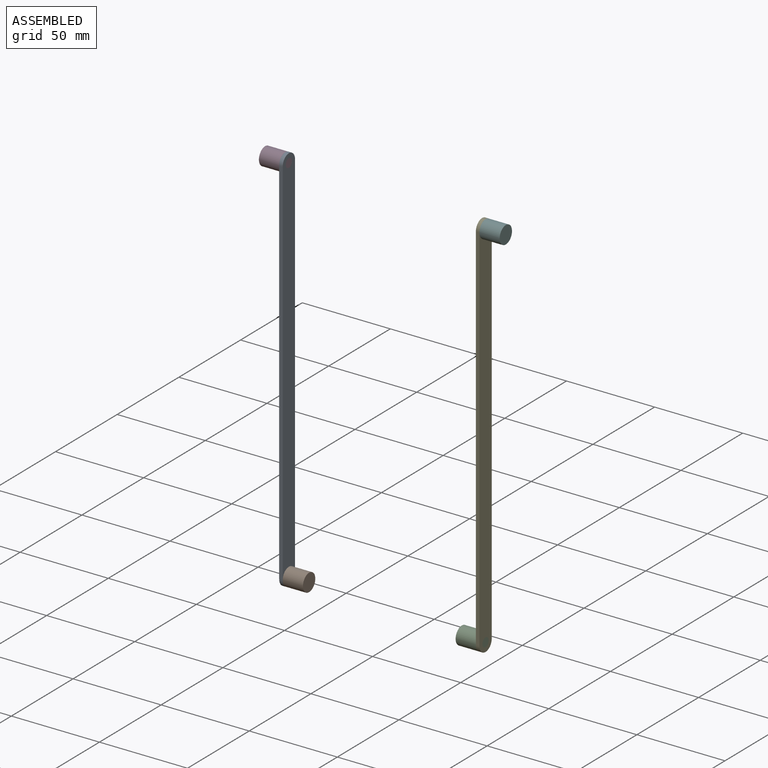
[diagram: assembled view]
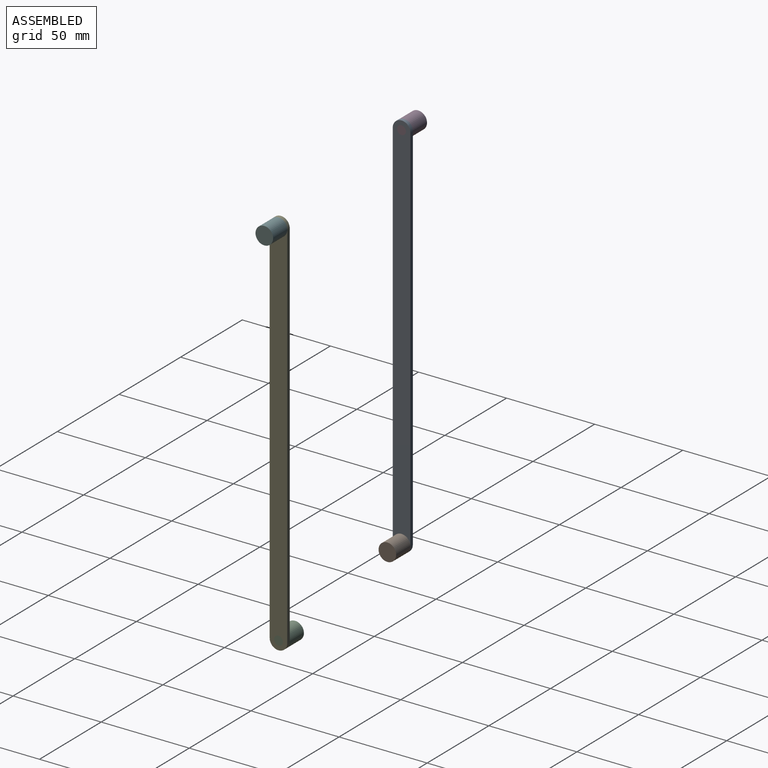
[diagram: assembled view, second angle]
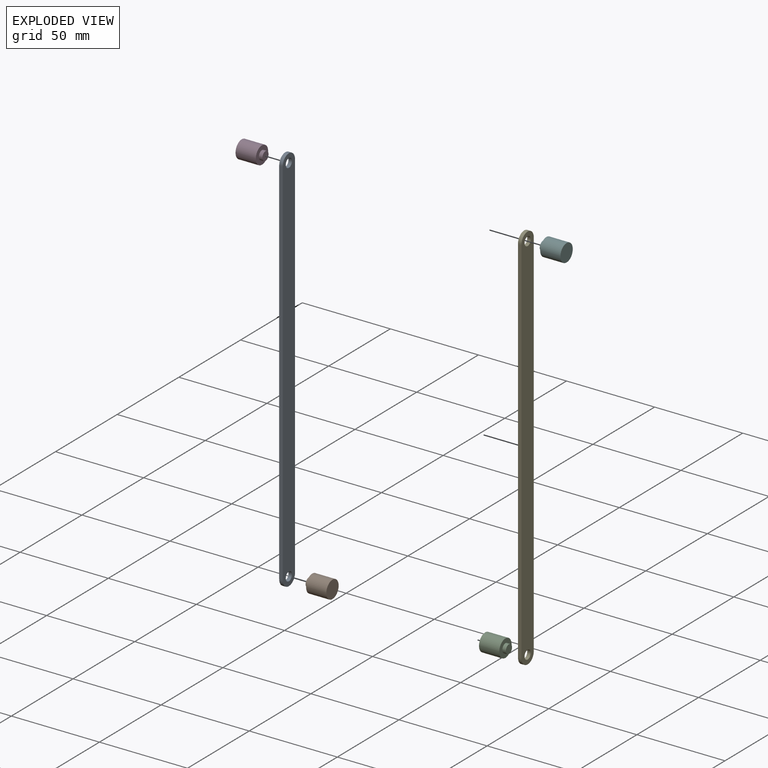
[diagram: exploded view]
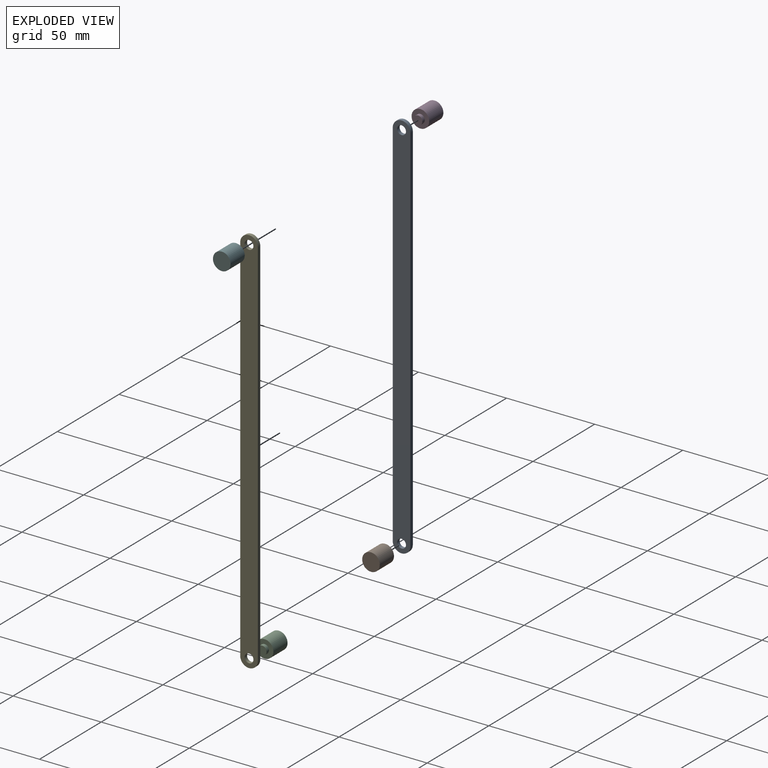
[diagram: exploded view, second angle]
ASSEMBLY  parts=6 mates=4
PART A: 8 faces, bbox 2x10x222.1 mm
  f0: cylinder r=5mm len=10mm, axis (-1,0,0), area 31.4mm2, adj f1,f3,f4,f5
  f1: plane 212.1x2mm, normal (0,-1,0), area 424.2mm2, adj f0,f2,f4,f5
  f2: cylinder r=5mm len=10mm, axis (-1,0,0), area 31.4mm2, adj f1,f3,f4,f5
  f3: plane 212.1x2mm, normal (0,1,0), area 424.2mm2, adj f0,f2,f4,f5
  f4: plane 222.1x10mm, normal (1,0,0), area 2160.3mm2, adj f0,f1,f2,f3,f6,f7
  f5: plane 222.1x10mm, normal (-1,0,0), area 2160.3mm2, adj f0,f1,f2,f3,f6,f7
  f6: cylinder r=2.5mm len=5mm, axis (-1,0,0), area 31.4mm2, adj f4,f5
  f7: cylinder r=2.5mm len=5mm, axis (-1,0,0), area 31.4mm2, adj f4,f5
PART B: 5 faces, bbox 13.5x10x10 mm
  f0: cylinder r=5mm len=11.5mm, axis (1,0,0), area 361.3mm2, adj f1,f2
  f1: plane 10x10mm, normal (-1,0,0), area 58.9mm2, adj f0,f3
  f2: plane 10x10mm, normal (1,0,0), area 78.5mm2, adj f0
  f3: cylinder r=2.5mm len=5mm, axis (1,0,0), area 31.4mm2, adj f1,f4
  f4: plane 5x5mm, normal (-1,0,0), area 19.6mm2, adj f3
PART C: 5 faces, bbox 13.5x10x10 mm
  f0: cylinder r=5mm len=11.5mm, axis (-1,0,0), area 361.3mm2, adj f1,f2
  f1: plane 10x10mm, normal (1,0,0), area 58.9mm2, adj f0,f3
  f2: plane 10x10mm, normal (-1,0,0), area 78.5mm2, adj f0
  f3: cylinder r=2.5mm len=5mm, axis (-1,0,0), area 31.4mm2, adj f1,f4
  f4: plane 5x5mm, normal (1,0,0), area 19.6mm2, adj f3
PART D: same geometry as C
PART E: same geometry as A
PART F: same geometry as B
PLACE A t=(-64.64,-28.39,12.53)mm
PLACE B t=(-51.14,-28.39,-93.52)mm
PLACE C t=(31.6,-22.8,-100.59)mm
PLACE D t=(-76.14,-28.39,118.58)mm
PLACE E t=(43.1,-22.8,5.46)mm
PLACE F t=(56.6,-22.8,111.51)mm
MATE revolute C.f3 <-> E.f2  axis (1,0,0) through (45.1,-22.8,-100.59)mm
MATE revolute F.f3 <-> E.f0  axis (-1,0,0) through (43.1,-22.8,111.51)mm
MATE revolute D.f3 <-> A.f0  axis (1,0,0) through (-62.64,-28.39,118.58)mm
MATE revolute B.f3 <-> A.f2  axis (-1,0,0) through (-64.64,-28.39,-93.52)mm
